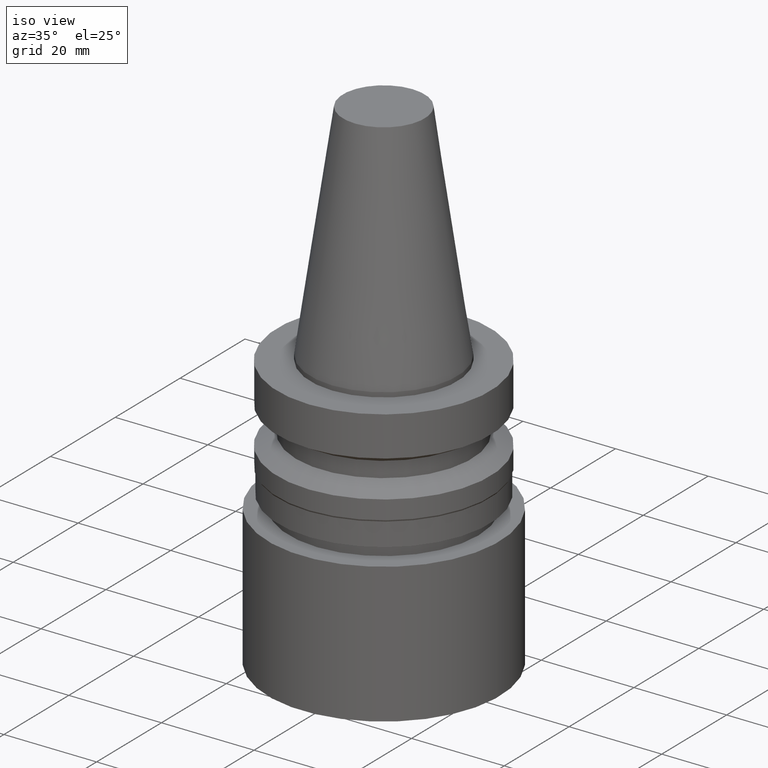
[diagram: clean part render]
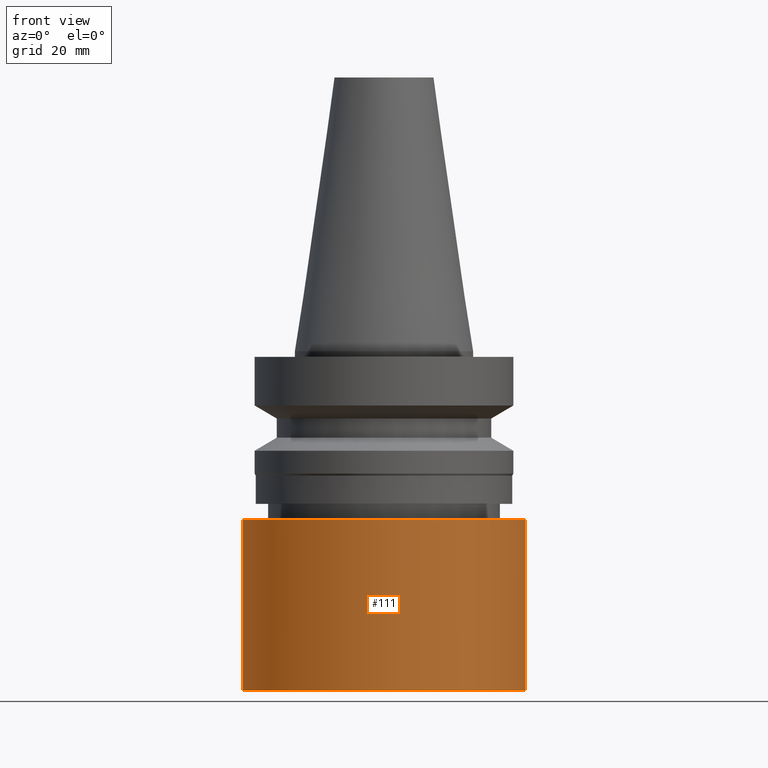
[diagram: tour spotlight — one face highlighted and labeled with its STEP entity id]
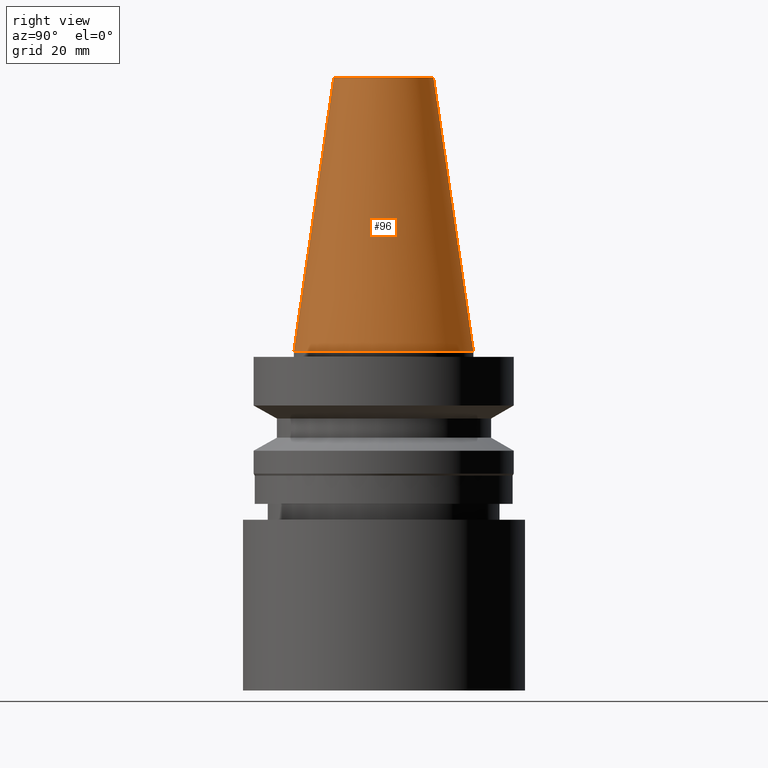
[diagram: tour spotlight — one face highlighted and labeled with its STEP entity id]
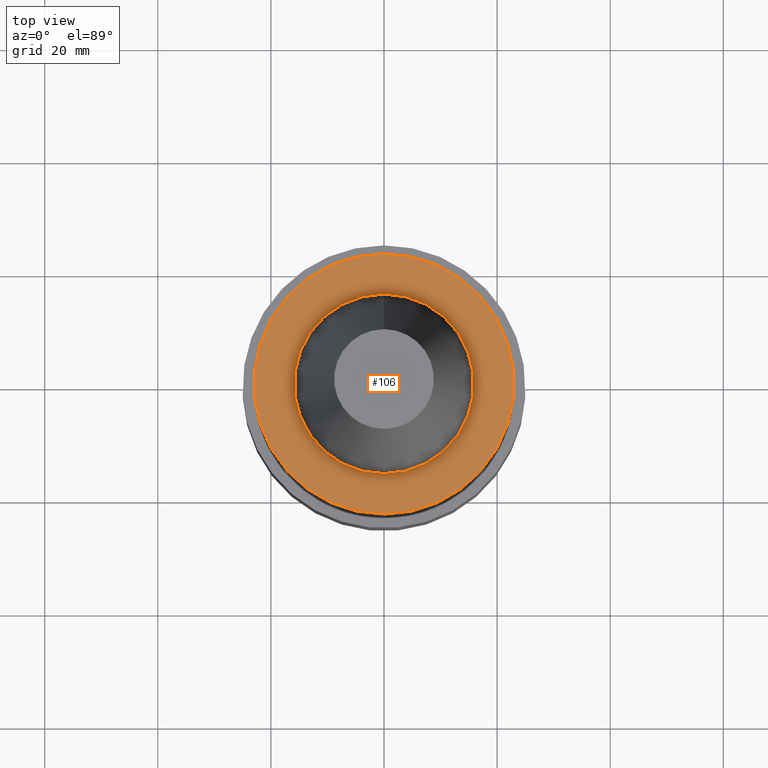
[diagram: tour spotlight — one face highlighted and labeled with its STEP entity id]
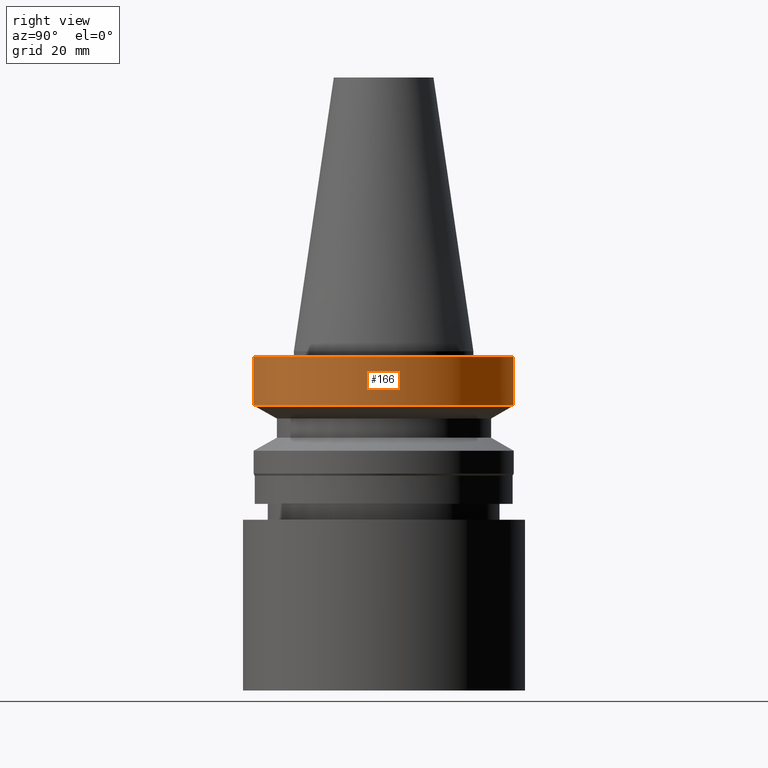
[diagram: tour spotlight — one face highlighted and labeled with its STEP entity id]
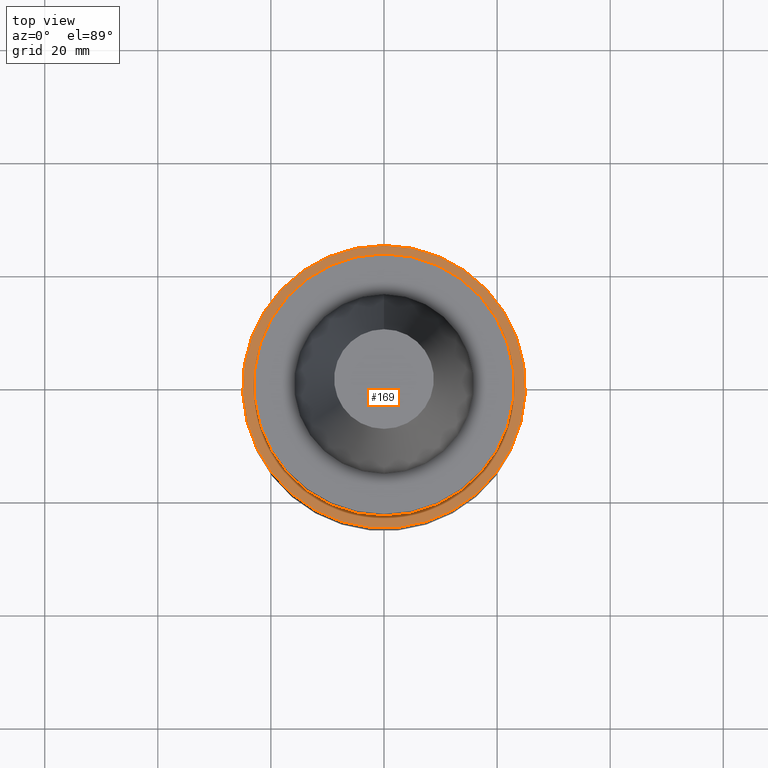
[diagram: tour spotlight — one face highlighted and labeled with its STEP entity id]
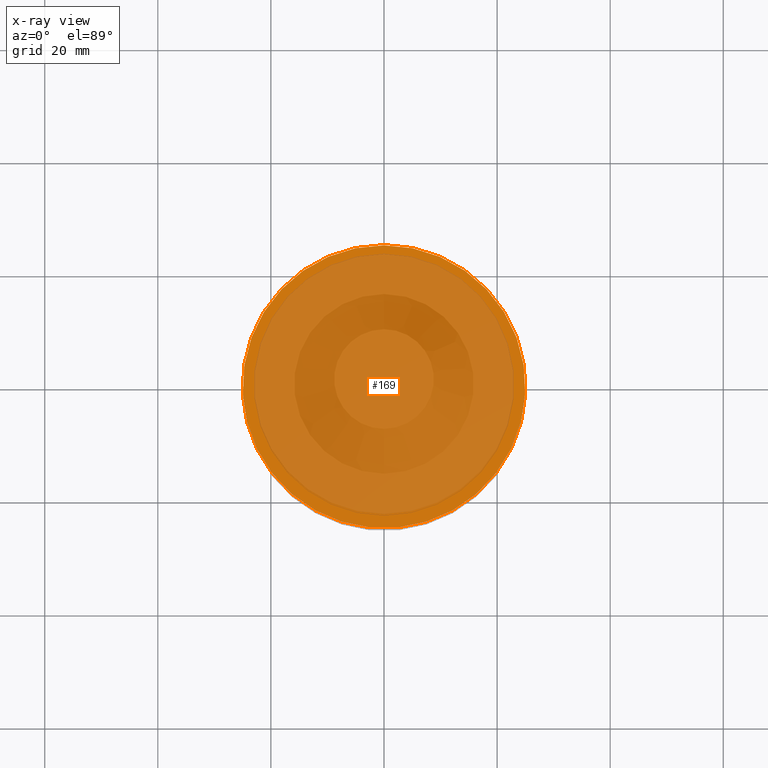
[diagram: x-ray of the same camera — body ghosted, this tour face saturated]
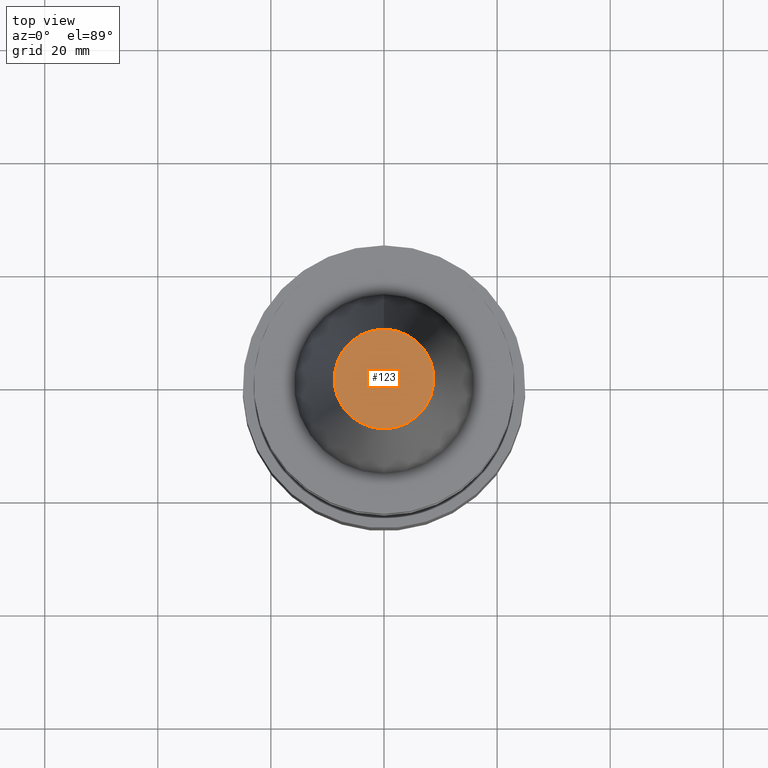
[diagram: tour spotlight — one face highlighted and labeled with its STEP entity id]
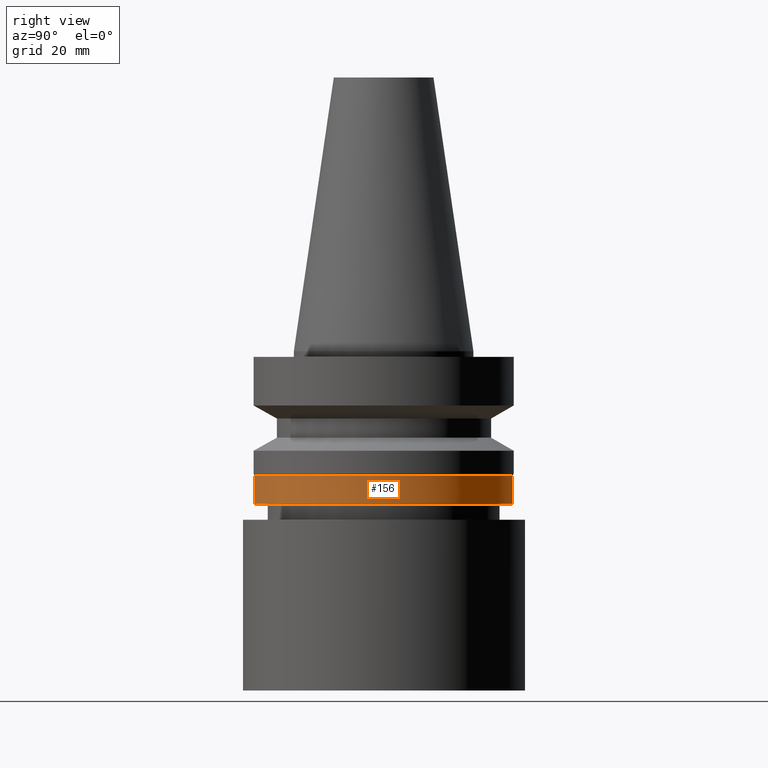
[diagram: tour spotlight — one face highlighted and labeled with its STEP entity id]
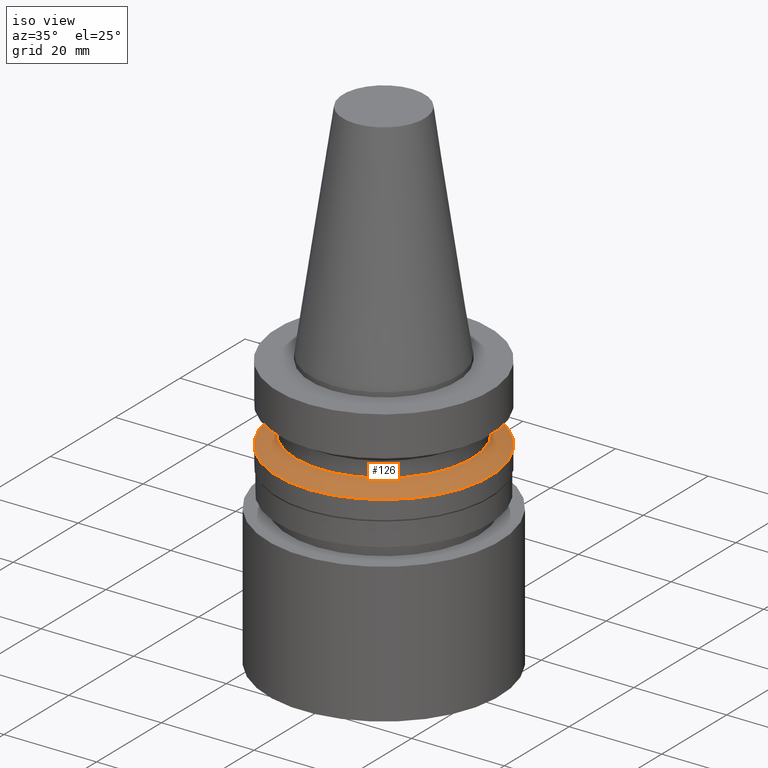
[diagram: tour spotlight — one face highlighted and labeled with its STEP entity id]
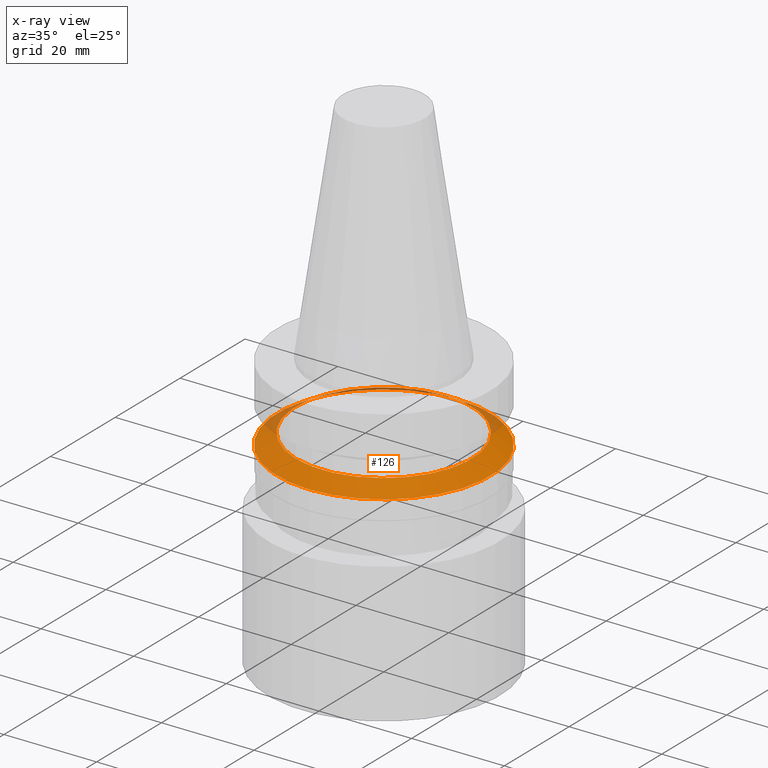
[diagram: x-ray of the same camera — body ghosted, this tour face saturated]
A machine part: a face-by-face anatomy tour. The part has 20 B-rep faces; the first image is the clean iso view, then the 8 largest visible faces are spotlighted one at a time (largest first), each with its STEP entity span.

Face 1 — front view, entity #111. In plain terms, the highlighted cylindrical surface (bore or boss wall) has radius 25 mm, axis along (0, 0, -1).
Definition (entity closure, byte-faithful):
#76=EDGE_CURVE('Unnamed[1]',#199,#199,#200,.T.);
#90=EDGE_CURVE('Unnamed[1]',#220,#220,#221,.T.);
#111=ADVANCED_FACE('Unnamed[1]',(#253,#254),#255,.T.);
#199=VERTEX_POINT('',#368);
#200=CIRCLE('',#369,25.0);
#220=VERTEX_POINT('',#395);
#221=CIRCLE('',#396,25.0);
#253=FACE_BOUND('',#436,.T.);
#254=FACE_BOUND('',#437,.T.);
#255=CYLINDRICAL_SURFACE('',#438,25.0);
#368=CARTESIAN_POINT('',(1.82472373072956E-015,25.0,-29.8));
#369=AXIS2_PLACEMENT_3D('',#561,#562,#563);
#395=CARTESIAN_POINT('',(3.67394039744206E-015,25.0,-60.0));
#396=AXIS2_PLACEMENT_3D('',#584,#585,#586);
#436=EDGE_LOOP('',(#621));
#437=EDGE_LOOP('',(#622));
#438=AXIS2_PLACEMENT_3D('',#623,#624,#625);
#561=CARTESIAN_POINT('',(1.82472373072956E-015,3.64944746145911E-015,-29.8));
#562=DIRECTION('',(6.12323399573677E-017,1.22464679914735E-016,-1.0));
#563=DIRECTION('',(-1.23259516440783E-032,1.0,1.22464679914735E-016));
#584=CARTESIAN_POINT('',(3.67394039744206E-015,7.34788079488412E-015,-60.0));
#585=DIRECTION('',(6.12323399573677E-017,1.22464679914735E-016,-1.0));
#586=DIRECTION('',(-1.23259516440783E-032,1.0,1.22464679914735E-016));
#621=ORIENTED_EDGE('',*,*,#90,.F.);
#622=ORIENTED_EDGE('',*,*,#76,.T.);
#623=CARTESIAN_POINT('',(2.74933206408581E-015,5.49866412817161E-015,-44.9));
#624=DIRECTION('',(6.12323399573677E-017,1.22464679914735E-016,-1.0));
#625=DIRECTION('',(-1.23259516440783E-032,1.0,1.22464679914735E-016));

Face 2 — right view, entity #96. In plain terms, the highlighted conical surface has half-angle 8.297 deg.
Definition (entity closure, byte-faithful):
#83=EDGE_CURVE('Unnamed[1]',#210,#210,#211,.T.);
#96=ADVANCED_FACE('Unnamed[1]',(#229,#230),#231,.T.);
#130=EDGE_CURVE('Unnamed[1]',#284,#284,#285,.T.);
#210=VERTEX_POINT('',#382);
#211=CIRCLE('',#383,8.81650000198669);
#229=FACE_BOUND('',#406,.T.);
#230=FACE_BOUND('',#407,.T.);
#231=CONICAL_SURFACE('',#408,12.3457500009933,0.144815870013618);
#284=VERTEX_POINT('',#474);
#285=CIRCLE('',#475,15.875);
#382=CARTESIAN_POINT('',(-2.96364525393659E-015,8.81650000198669,48.4));
#383=AXIS2_PLACEMENT_3D('',#573,#574,#575);
#406=EDGE_LOOP('',(#594));
#407=EDGE_LOOP('',(#595));
#408=AXIS2_PLACEMENT_3D('',#596,#597,#598);
#474=CARTESIAN_POINT('',(-1.95674482349743E-031,15.875,1.94412679364642E-015));
#475=AXIS2_PLACEMENT_3D('',#658,#659,#660);
#573=CARTESIAN_POINT('',(-2.96364525393659E-015,-5.92729050787319E-015,48.4));
#574=DIRECTION('',(6.12323399573677E-017,1.22464679914735E-016,-1.0));
#575=DIRECTION('',(-1.23259516440783E-032,1.0,1.22464679914735E-016));
#594=ORIENTED_EDGE('',*,*,#130,.F.);
#595=ORIENTED_EDGE('',*,*,#83,.T.);
#596=CARTESIAN_POINT('',(-1.4818226269683E-015,-2.96364525393659E-015,24.2));
#597=DIRECTION('',(6.12323399573677E-017,1.22464679914735E-016,-1.0));
#598=DIRECTION('',(-1.23259516440783E-032,1.0,1.22464679914735E-016));
#658=CARTESIAN_POINT('',(0.0,0.0,0.0));
#659=DIRECTION('',(6.12323399573677E-017,1.22464679914735E-016,-1.0));
#660=DIRECTION('',(-1.23259516440783E-032,1.0,1.22464679914735E-016));

Face 3 — top view, entity #106. In plain terms, the highlighted planar face has unit normal (-0, -0, 1).
Definition (entity closure, byte-faithful):
#81=EDGE_CURVE('Unnamed[1]',#207,#207,#208,.T.);
#106=ADVANCED_FACE('Unnamed[1]',(#245,#246),#247,.T.);
#158=EDGE_CURVE('Unnamed[1]',#326,#326,#327,.T.);
#207=VERTEX_POINT('',#378);
#208=CIRCLE('',#379,15.875);
#245=FACE_OUTER_BOUND('',#426,.T.);
#246=FACE_BOUND('',#427,.T.);
#247=PLANE('',#428);
#326=VERTEX_POINT('',#526);
#327=CIRCLE('',#527,23.0);
#378=CARTESIAN_POINT('',(6.12323399573675E-017,15.875,-0.999999999999998));
#379=AXIS2_PLACEMENT_3D('',#570,#571,#572);
#426=EDGE_LOOP('',(#612));
#427=EDGE_LOOP('',(#613));
#428=AXIS2_PLACEMENT_3D('',#614,#615,#616);
#526=CARTESIAN_POINT('',(6.12323399573674E-017,23.0,-0.999999999999997));
#527=AXIS2_PLACEMENT_3D('',#703,#704,#705);
#570=CARTESIAN_POINT('',(6.12323399573677E-017,1.22464679914735E-016,-1.0));
#571=DIRECTION('',(6.12323399573677E-017,1.22464679914735E-016,-1.0));
#572=DIRECTION('',(-1.23259516440783E-032,1.0,1.22464679914735E-016));
#612=ORIENTED_EDGE('',*,*,#158,.F.);
#613=ORIENTED_EDGE('',*,*,#81,.T.);
#614=CARTESIAN_POINT('',(6.12323399573674E-017,19.4375,-0.999999999999998));
#615=DIRECTION('',(-6.12323399573677E-017,-1.22464679914735E-016,1.0));
#616=DIRECTION('',(1.23259516440783E-032,-1.0,-1.22464679914735E-016));
#703=CARTESIAN_POINT('',(6.12323399573677E-017,1.22464679914735E-016,-1.0));
#704=DIRECTION('',(6.12323399573677E-017,1.22464679914735E-016,-1.0));
#705=DIRECTION('',(-1.23259516440783E-032,1.0,1.22464679914735E-016));

Face 4 — right view, entity #166. In plain terms, the highlighted cylindrical surface (bore or boss wall) has radius 23 mm, axis along (0, 0, -1).
Definition (entity closure, byte-faithful):
#151=EDGE_CURVE('Unnamed[1]',#315,#315,#316,.T.);
#158=EDGE_CURVE('Unnamed[1]',#326,#326,#327,.T.);
#166=ADVANCED_FACE('Unnamed[1]',(#336,#337),#338,.T.);
#315=VERTEX_POINT('',#512);
#316=CIRCLE('',#513,23.0);
#326=VERTEX_POINT('',#526);
#327=CIRCLE('',#527,23.0);
#336=FACE_BOUND('',#538,.T.);
#337=FACE_BOUND('',#539,.T.);
#338=CYLINDRICAL_SURFACE('',#540,23.0);
#512=CARTESIAN_POINT('',(5.87830463590729E-016,23.0,-9.59999999999999));
#513=AXIS2_PLACEMENT_3D('',#691,#692,#693);
#526=CARTESIAN_POINT('',(6.12323399573674E-017,23.0,-0.999999999999997));
#527=AXIS2_PLACEMENT_3D('',#703,#704,#705);
#538=EDGE_LOOP('',(#711));
#539=EDGE_LOOP('',(#712));
#540=AXIS2_PLACEMENT_3D('',#713,#714,#715);
#691=CARTESIAN_POINT('',(5.87830463590729E-016,1.17566092718146E-015,-9.59999999999999));
#692=DIRECTION('',(6.12323399573677E-017,1.22464679914735E-016,-1.0));
#693=DIRECTION('',(-1.23259516440783E-032,1.0,1.22464679914735E-016));
#703=CARTESIAN_POINT('',(6.12323399573677E-017,1.22464679914735E-016,-1.0));
#704=DIRECTION('',(6.12323399573677E-017,1.22464679914735E-016,-1.0));
#705=DIRECTION('',(-1.23259516440783E-032,1.0,1.22464679914735E-016));
#711=ORIENTED_EDGE('',*,*,#151,.F.);
#712=ORIENTED_EDGE('',*,*,#158,.T.);
#713=CARTESIAN_POINT('',(3.24531401774048E-016,6.49062803548097E-016,-5.3));
#714=DIRECTION('',(6.12323399573677E-017,1.22464679914735E-016,-1.0));
#715=DIRECTION('',(-1.23259516440783E-032,1.0,1.22464679914735E-016));

Face 5 — top view, entity #169. An x-ray twin of the same camera follows (body ghosted, this face saturated) — the face is partly hidden behind the body. In plain terms, the highlighted planar face has unit normal (-0, -0, 1).
Definition (entity closure, byte-faithful):
#76=EDGE_CURVE('Unnamed[1]',#199,#199,#200,.T.);
#169=ADVANCED_FACE('Unnamed[1]',(#341),#342,.T.);
#199=VERTEX_POINT('',#368);
#200=CIRCLE('',#369,25.0);
#341=FACE_OUTER_BOUND('',#544,.T.);
#342=PLANE('',#545);
#368=CARTESIAN_POINT('',(1.82472373072956E-015,25.0,-29.8));
#369=AXIS2_PLACEMENT_3D('',#561,#562,#563);
#544=EDGE_LOOP('',(#717));
#545=AXIS2_PLACEMENT_3D('',#718,#719,#720);
#561=CARTESIAN_POINT('',(1.82472373072956E-015,3.64944746145911E-015,-29.8));
#562=DIRECTION('',(6.12323399573677E-017,1.22464679914735E-016,-1.0));
#563=DIRECTION('',(-1.23259516440783E-032,1.0,1.22464679914735E-016));
#717=ORIENTED_EDGE('',*,*,#76,.F.);
#718=CARTESIAN_POINT('',(1.82472373072956E-015,12.5,-29.8));
#719=DIRECTION('',(-6.12323399573677E-017,-1.22464679914735E-016,1.0));
#720=DIRECTION('',(1.23259516440783E-032,-1.0,-1.22464679914735E-016));

Face 6 — top view, entity #123. In plain terms, the highlighted planar face has unit normal (-0, -0, 1).
Definition (entity closure, byte-faithful):
#83=EDGE_CURVE('Unnamed[1]',#210,#210,#211,.T.);
#123=ADVANCED_FACE('Unnamed[1]',(#273),#274,.T.);
#210=VERTEX_POINT('',#382);
#211=CIRCLE('',#383,8.81650000198669);
#273=FACE_OUTER_BOUND('',#460,.T.);
#274=PLANE('',#461);
#382=CARTESIAN_POINT('',(-2.96364525393659E-015,8.81650000198669,48.4));
#383=AXIS2_PLACEMENT_3D('',#573,#574,#575);
#460=EDGE_LOOP('',(#645));
#461=AXIS2_PLACEMENT_3D('',#646,#647,#648);
#573=CARTESIAN_POINT('',(-2.96364525393659E-015,-5.92729050787319E-015,48.4));
#574=DIRECTION('',(6.12323399573677E-017,1.22464679914735E-016,-1.0));
#575=DIRECTION('',(-1.23259516440783E-032,1.0,1.22464679914735E-016));
#645=ORIENTED_EDGE('',*,*,#83,.F.);
#646=CARTESIAN_POINT('',(-2.96364525393659E-015,4.40825000099334,48.4));
#647=DIRECTION('',(-6.12323399573677E-017,-1.22464679914735E-016,1.0));
#648=DIRECTION('',(1.23259516440783E-032,-1.0,-1.22464679914735E-016));

Face 7 — right view, entity #156. In plain terms, the highlighted cylindrical surface (bore or boss wall) has radius 22.8 mm, axis along (0, 0, -1).
Definition (entity closure, byte-faithful):
#101=EDGE_CURVE('Unnamed[1]',#238,#238,#239,.T.);
#156=ADVANCED_FACE('Unnamed[1]',(#322,#323),#324,.T.);
#171=EDGE_CURVE('Unnamed[1]',#344,#344,#345,.T.);
#238=VERTEX_POINT('',#417);
#239=CIRCLE('',#418,22.7999999999997);
#322=FACE_BOUND('',#521,.T.);
#323=FACE_BOUND('',#522,.T.);
#324=CYLINDRICAL_SURFACE('',#523,22.7999999999999);
#344=VERTEX_POINT('',#548);
#345=CIRCLE('',#549,22.8000000000001);
#417=CARTESIAN_POINT('',(1.34711147906111E-015,22.7999999999997,-21.9999999999841));
#418=AXIS2_PLACEMENT_3D('',#605,#606,#607);
#521=EDGE_LOOP('',(#698));
#522=EDGE_LOOP('',(#699));
#523=AXIS2_PLACEMENT_3D('',#700,#701,#702);
#548=CARTESIAN_POINT('',(1.65328282719225E-015,22.8000000000001,-27.0001575694042));
#549=AXIS2_PLACEMENT_3D('',#721,#722,#723);
#605=CARTESIAN_POINT('',(1.34711147906111E-015,2.69422295812223E-015,-21.9999999999841));
#606=DIRECTION('',(6.12323399573677E-017,1.22464679914735E-016,-1.0));
#607=DIRECTION('',(-1.23259516440783E-032,1.0,1.22464679914735E-016));
#698=ORIENTED_EDGE('',*,*,#171,.F.);
#699=ORIENTED_EDGE('',*,*,#101,.T.);
#700=CARTESIAN_POINT('',(1.50019715312668E-015,3.00039430625337E-015,-24.5000787846941));
#701=DIRECTION('',(6.12323399573677E-017,1.22464679914735E-016,-1.0));
#702=DIRECTION('',(-1.23259516440783E-032,1.0,1.22464679914735E-016));
#721=CARTESIAN_POINT('',(1.65328282719225E-015,3.3065656543845E-015,-27.0001575694042));
#722=DIRECTION('',(6.12323399573677E-017,1.22464679914735E-016,-1.0));
#723=DIRECTION('',(-1.23259516440783E-032,1.0,1.22464679914735E-016));

Face 8 — iso view, entity #126. An x-ray twin of the same camera follows (body ghosted, this face saturated) — the face is partly hidden behind the body. In plain terms, the highlighted conical surface has half-angle 60 deg.
Definition (entity closure, byte-faithful):
#126=ADVANCED_FACE('Unnamed[1]',(#277,#278),#279,.T.);
#153=EDGE_CURVE('Unnamed[1]',#318,#318,#319,.T.);
#173=EDGE_CURVE('Unnamed[1]',#347,#347,#348,.T.);
#277=FACE_BOUND('',#465,.T.);
#278=FACE_BOUND('',#466,.T.);
#279=CONICAL_SURFACE('',#467,21.0,1.04719755058882);
#318=VERTEX_POINT('',#516);
#319=CIRCLE('',#517,23.0);
#347=VERTEX_POINT('',#552);
#348=CIRCLE('',#553,19.0);
#465=EDGE_LOOP('',(#650));
#466=EDGE_LOOP('',(#651));
#467=AXIS2_PLACEMENT_3D('',#652,#653,#654);
#516=CARTESIAN_POINT('',(1.07768918324967E-015,23.0,-17.6));
#517=AXIS2_PLACEMENT_3D('',#694,#695,#696);
#552=CARTESIAN_POINT('',(9.36279151221199E-016,19.0,-15.29059892));
#553=AXIS2_PLACEMENT_3D('',#724,#725,#726);
#650=ORIENTED_EDGE('',*,*,#153,.F.);
#651=ORIENTED_EDGE('',*,*,#173,.T.);
#652=CARTESIAN_POINT('',(1.00698416723543E-015,2.01396833447087E-015,-16.44529946));
#653=DIRECTION('',(6.12323399573677E-017,1.22464679914735E-016,-1.0));
#654=DIRECTION('',(-1.23259516440783E-032,1.0,1.22464679914735E-016));
#694=CARTESIAN_POINT('',(1.07768918324967E-015,2.15537836649934E-015,-17.6));
#695=DIRECTION('',(6.12323399573677E-017,1.22464679914735E-016,-1.0));
#696=DIRECTION('',(-1.23259516440783E-032,1.0,1.22464679914735E-016));
#724=CARTESIAN_POINT('',(9.36279151221199E-016,1.8725583024424E-015,-15.29059892));
#725=DIRECTION('',(6.12323399573677E-017,1.22464679914735E-016,-1.0));
#726=DIRECTION('',(-1.23259516440783E-032,1.0,1.22464679914735E-016));